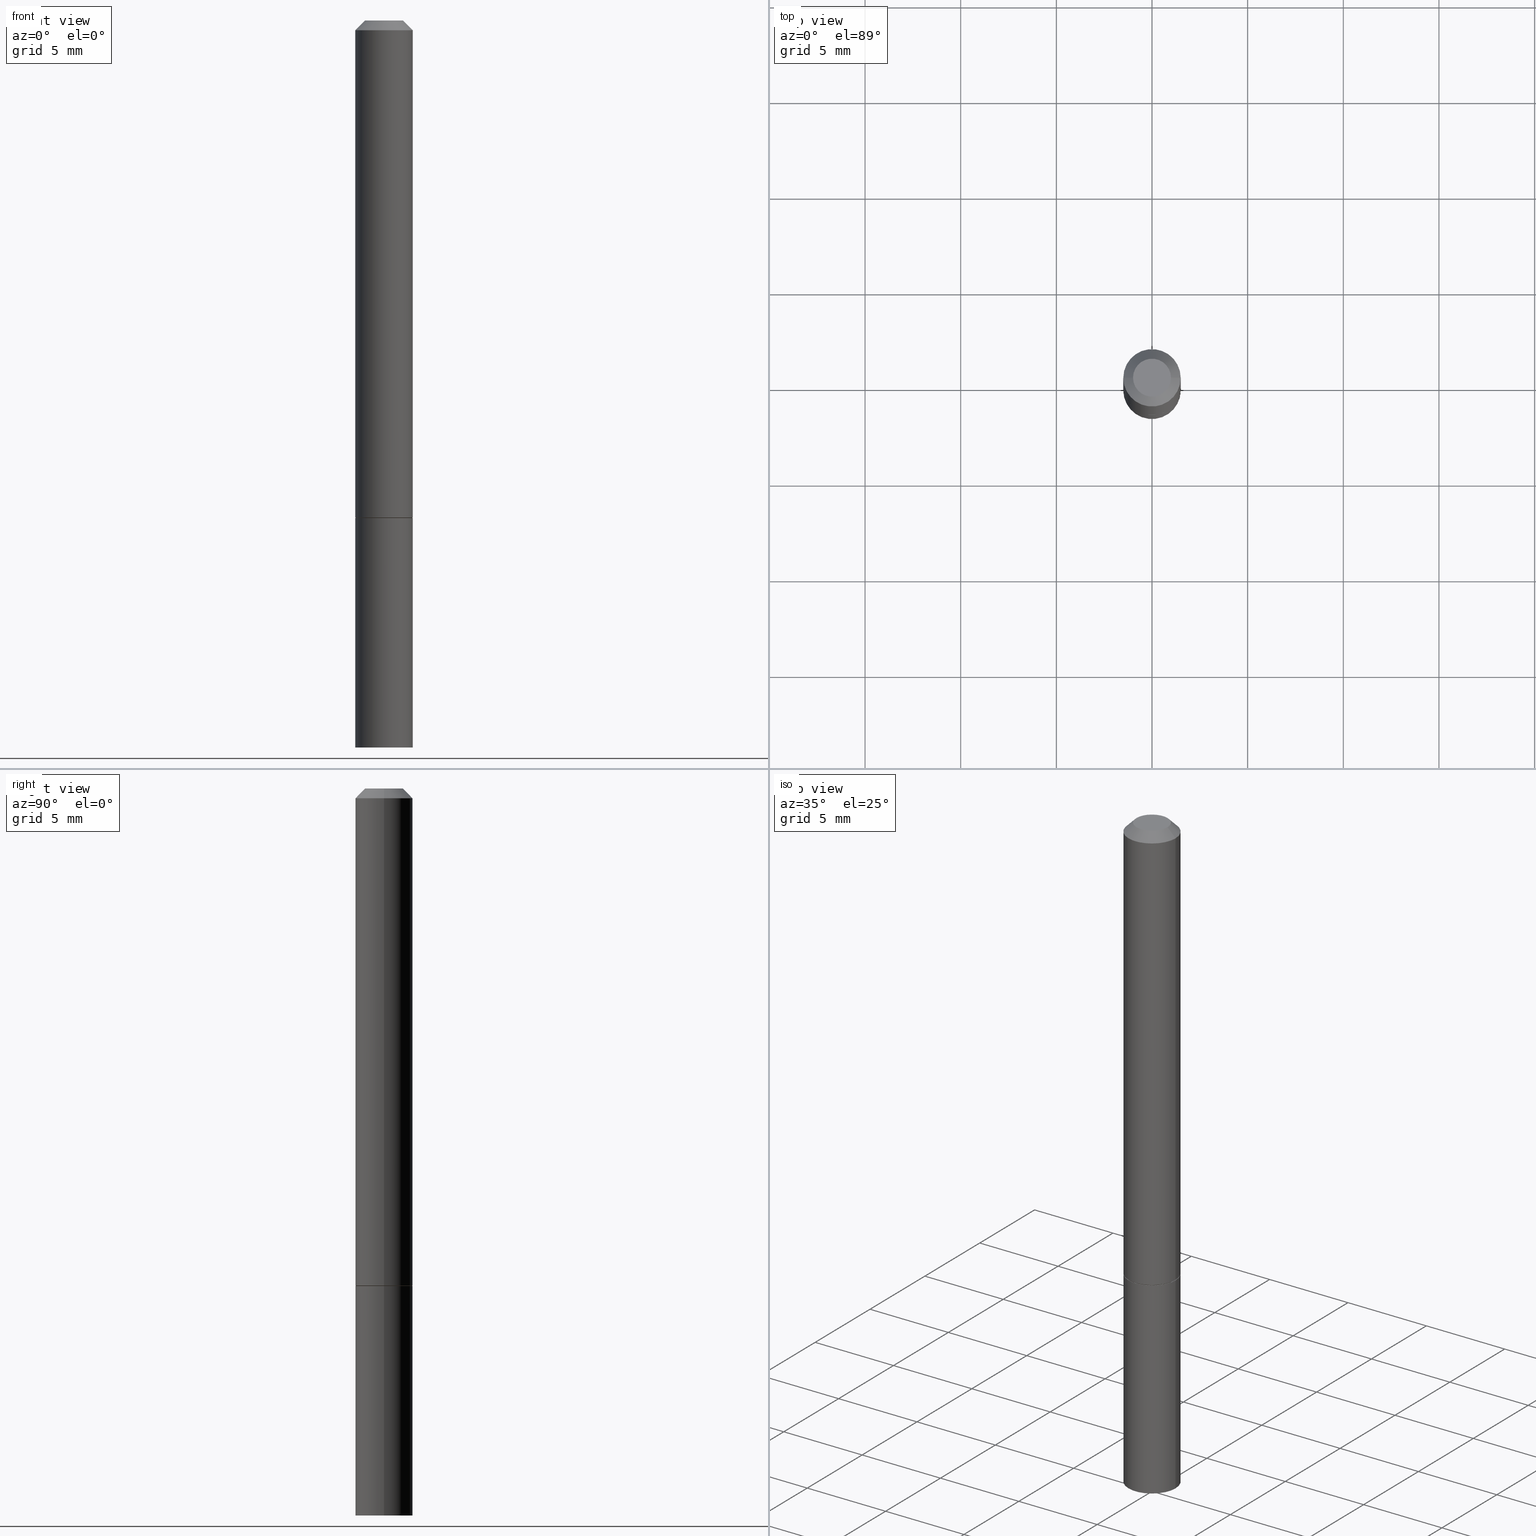
[diagram: canonical four-view strip — front | top / right | iso, engineering-drawing reading convention]
A machine part, canonical four-view strip (front | top / right | iso — engineering-drawing reading convention). The complete STEP part file that produces these views, byte-faithful:
ISO-10303-21;
HEADER;
FILE_DESCRIPTION (( 'STEP AP203' ),
    '1' );
FILE_NAME ('40121.STEP',
    '2024-02-28T01:29:10',
    ( '' ),
    ( '' ),
    'SwSTEP 2.0',
    'SolidWorks 2023',
    '' );
FILE_SCHEMA (( 'CONFIG_CONTROL_DESIGN' ));
ENDSEC;

DATA;
#1 = UNCERTAINTY_MEASURE_WITH_UNIT (LENGTH_MEASURE( 1.000000000000000082E-05 ), #310, 'distance_accuracy_value', 'NONE');
#2 = ORIENTED_EDGE ( 'NONE', *, *, #258, .T. ) ;
#3 = APPROVAL ( #11, 'UNSPECIFIED' ) ;
#4 = VERTEX_POINT ( 'NONE', #214 ) ;
#5 = DIMENSIONAL_EXPONENTS ( 1.000000000000000000, 0.000000000000000000, 0.000000000000000000, 0.000000000000000000, 0.000000000000000000, 0.000000000000000000, 0.000000000000000000 ) ;
#6 = DATE_AND_TIME ( #293, #187 ) ;
#7 = ORIENTED_EDGE ( 'NONE', *, *, #148, .T. ) ;
#8 = VECTOR ( 'NONE', #195, 39.37007874015748143 ) ;
#9 = COORDINATED_UNIVERSAL_TIME_OFFSET ( 5, 0, .BEHIND. ) ;
#10 = ORIENTED_EDGE ( 'NONE', *, *, #258, .F. ) ;
#11 = APPROVAL_STATUS ( 'not_yet_approved' ) ;
#12 = ADVANCED_FACE ( 'NONE', ( #154 ), #227, .T. ) ;
#13 = ORIENTED_EDGE ( 'NONE', *, *, #166, .T. ) ;
#14 = ORIENTED_EDGE ( 'NONE', *, *, #138, .F. ) ;
#15 = AXIS2_PLACEMENT_3D ( 'NONE', #183, #43, #69 ) ;
#16 = VECTOR ( 'NONE', #28, 39.37007874015748854 ) ;
#17 = CARTESIAN_POINT ( 'NONE',  ( 0.05904999999999999832, -4.123439461173740327E-16, 2.879382386107500220E-30 ) ) ;
#18 = DIRECTION ( 'NONE',  ( -1.000000000000000000, 6.982962677686266711E-15, 0.000000000000000000 ) ) ;
#19 = DIRECTION ( 'NONE',  ( -2.445468806185136597E-29, 3.491481338843145583E-15, 1.000000000000000000 ) ) ;
#20 = CLOSED_SHELL ( 'NONE', ( #280, #230, #330, #270 ) ) ;
#21 = DIRECTION ( 'NONE',  ( -1.000000000000000000, 6.982962677686265922E-15, -4.876176775795935793E-29 ) ) ;
#22 = CARTESIAN_POINT ( 'NONE',  ( 4.123439461174105668E-16, 0.05904999999999477334, -1.496100000000000207 ) ) ;
#23 = APPROVAL ( #207, 'UNSPECIFIED' ) ;
#24 = FACE_OUTER_BOUND ( 'NONE', #237, .T. ) ;
#25 = CIRCLE ( 'NONE', #288, 0.05904999999999999832 ) ;
#26 = DIRECTION ( 'NONE',  ( 2.445468806185136597E-29, -3.491481338843145583E-15, -1.000000000000000000 ) ) ;
#27 = ADVANCED_FACE ( 'NONE', ( #208 ), #130, .F. ) ;
#28 = DIRECTION ( 'NONE',  ( -0.7071067811865232589, 7.493145998870265808E-15, 0.7071067811865715536 ) ) ;
#29 = APPLICATION_CONTEXT ( 'configuration controlled 3d designs of mechanical parts and assemblies' ) ;
#30 = ADVANCED_FACE ( 'NONE', ( #125 ), #216, .F. ) ;
#31 = CONICAL_SURFACE ( 'NONE', #161, 0.05904999999999987342, 0.7853981633974471688 ) ;
#32 = FACE_OUTER_BOUND ( 'NONE', #141, .T. ) ;
#33 = DESIGN_CONTEXT ( 'detailed design', #29, 'design' ) ;
#34 = PERSON_AND_ORGANIZATION ( #80, #277 ) ;
#35 = EDGE_LOOP ( 'NONE', ( #251, #204 ) ) ;
#36 = APPROVAL_DATE_TIME ( #286, #3 ) ;
#37 = EDGE_LOOP ( 'NONE', ( #7, #41, #131, #311 ) ) ;
#38 = SECURITY_CLASSIFICATION ( '', '', #213 ) ;
#39 = ADVANCED_FACE ( 'NONE', ( #238 ), #331, .T. ) ;
#40 = CALENDAR_DATE ( 2024, 27, 2 ) ;
#41 = ORIENTED_EDGE ( 'NONE', *, *, #337, .T. ) ;
#42 = COORDINATED_UNIVERSAL_TIME_OFFSET ( 5, 0, .BEHIND. ) ;
#43 = DIRECTION ( 'NONE',  ( -2.445468806185136597E-29, 3.491481338843145583E-15, 1.000000000000000000 ) ) ;
#44 = DATE_TIME_ROLE ( 'creation_date' ) ;
#45 = ORIENTED_EDGE ( 'NONE', *, *, #327, .T. ) ;
#46 = APPROVAL ( #68, 'UNSPECIFIED' ) ;
#47 = AXIS2_PLACEMENT_3D ( 'NONE', #351, #260, #322 ) ;
#48 = CARTESIAN_POINT ( 'NONE',  ( -0.05904999999999987342, 3.425143193405101922E-16, -0.02000000000000001429 ) ) ;
#49 = CARTESIAN_POINT ( 'NONE',  ( -0.05904999999999987342, 3.425143193405101922E-16, -0.02000000000000001429 ) ) ;
#50 = DIRECTION ( 'NONE',  ( 1.000000000000000000, -6.982962677686267499E-15, 4.876176775795935793E-29 ) ) ;
#51 = AXIS2_PLACEMENT_3D ( 'NONE', #357, #358, #50 ) ;
#52 = CIRCLE ( 'NONE', #349, 0.05904999999999999832 ) ;
#53 = EDGE_CURVE ( 'NONE', #4, #87, #266, .T. ) ;
#54 = DIRECTION ( 'NONE',  ( -0.7071067811865466846, 2.468850131082247989E-15, -0.7071067811865483499 ) ) ;
#55 = FACE_OUTER_BOUND ( 'NONE', #347, .T. ) ;
#56 = ADVANCED_BREP_SHAPE_REPRESENTATION ( '40121', ( #263, #268, #107 ), #244 ) ;
#57 = CARTESIAN_POINT ( 'NONE',  ( 4.890937612370275786E-31, -6.982962677686296539E-17, -0.02000000000000001429 ) ) ;
#58 = EDGE_LOOP ( 'NONE', ( #114, #344 ) ) ;
#59 = EDGE_CURVE ( 'NONE', #179, #261, #102, .T. ) ;
#60 = CARTESIAN_POINT ( 'NONE',  ( 4.123439461173990297E-16, 0.05904999999999642479, -1.023700000000000276 ) ) ;
#61 = CC_DESIGN_DATE_AND_TIME_ASSIGNMENT ( #129, #215, ( #38 ) ) ;
#62 = DIRECTION ( 'NONE',  ( -2.445468806185136597E-29, 3.491481338843145583E-15, 1.000000000000000000 ) ) ;
#63 = ORIENTED_EDGE ( 'NONE', *, *, #197, .F. ) ;
#64 = DIRECTION ( 'NONE',  ( -2.445468806185136877E-29, 3.491481338843145188E-15, 1.000000000000000000 ) ) ;
#65 = AXIS2_PLACEMENT_3D ( 'NONE', #210, #73, #284 ) ;
#66 = CC_DESIGN_APPROVAL ( #3, ( #202 ) ) ;
#67 = ORIENTED_EDGE ( 'NONE', *, *, #181, .F. ) ;
#68 = APPROVAL_STATUS ( 'not_yet_approved' ) ;
#69 = DIRECTION ( 'NONE',  ( 1.000000000000000000, -6.982962677686263555E-15, 0.000000000000000000 ) ) ;
#70 = PERSON_AND_ORGANIZATION_ROLE ( 'classification_officer' ) ;
#71 = ORIENTED_EDGE ( 'NONE', *, *, #211, .T. ) ;
#72 = ADVANCED_FACE ( 'NONE', ( #180 ), #291, .T. ) ;
#73 = DIRECTION ( 'NONE',  ( -2.445468806185136597E-29, 3.491481338843145583E-15, 1.000000000000000000 ) ) ;
#74 = CIRCLE ( 'NONE', #171, 0.05904999999999987342 ) ;
#75 = APPLICATION_PROTOCOL_DEFINITION ( 'international standard', 'config_control_design', 1994, #29 ) ;
#76 = ORIENTED_EDGE ( 'NONE', *, *, #118, .F. ) ;
#77 = CARTESIAN_POINT ( 'NONE',  ( 2.503426416891724625E-29, -3.574229446573728402E-15, -1.023700000000000054 ) ) ;
#78 = CARTESIAN_POINT ( 'NONE',  ( 0.05804999999999999744, -3.979590430013416519E-15, -1.023700000000000054 ) ) ;
#79 = PLANE ( 'NONE',  #89 ) ;
#80 = PERSON ( 'UNSPECIFIED', 'UNSPECIFIED', 'UNSPECIFIED', ('UNSPECIFIED'), ('UNSPECIFIED'), ('UNSPECIFIED') ) ;
#81 = CARTESIAN_POINT ( 'NONE',  ( -0.05904999999999999832, -1.400708310539532684E-15, -1.022699999999999942 ) ) ;
#82 = DIRECTION ( 'NONE',  ( 2.438088387897960049E-29, -3.491481338843145188E-15, -1.000000000000000000 ) ) ;
#83 = CLOSED_SHELL ( 'NONE', ( #12, #359, #364, #128, #72, #39, #30, #27 ) ) ;
#84 = CARTESIAN_POINT ( 'NONE',  ( 3.658665880933582389E-29, -5.223605231043229660E-15, -1.496099999999999985 ) ) ;
#85 = CC_DESIGN_PERSON_AND_ORGANIZATION_ASSIGNMENT ( #34, #70, ( #38 ) ) ;
#86 = CARTESIAN_POINT ( 'NONE',  ( 2.500980948085539022E-29, -3.570737965234884606E-15, -1.022699999999999942 ) ) ;
#87 = VERTEX_POINT ( 'NONE', #271 ) ;
#88 = CIRCLE ( 'NONE', #366, 0.05804999999999999744 ) ;
#89 = AXIS2_PLACEMENT_3D ( 'NONE', #22, #82, #21 ) ;
#90 = FACE_OUTER_BOUND ( 'NONE', #35, .T. ) ;
#91 = VERTEX_POINT ( 'NONE', #190 ) ;
#92 = DIRECTION ( 'NONE',  ( 2.438088387897960049E-29, -3.491481338843145188E-15, -1.000000000000000000 ) ) ;
#93 = CIRCLE ( 'NONE', #212, 0.05904999999999999832 ) ;
#94 = COORDINATED_UNIVERSAL_TIME_OFFSET ( 5, 0, .BEHIND. ) ;
#95 = LOCAL_TIME ( 20, 29, 10.00000000000000000, #121 ) ;
#96 = APPROVAL_ROLE ( '' ) ;
#97 = EDGE_CURVE ( 'NONE', #123, #253, #320, .T. ) ;
#98 = ORIENTED_EDGE ( 'NONE', *, *, #59, .T. ) ;
#99 = DIRECTION ( 'NONE',  ( -1.000000000000000000, 6.982962677686265922E-15, -4.876176775795935793E-29 ) ) ;
#100 = APPROVAL_DATE_TIME ( #177, #46 ) ;
#101 = ORIENTED_EDGE ( 'NONE', *, *, #59, .F. ) ;
#102 = CIRCLE ( 'NONE', #65, 0.05904999999999987342 ) ;
#103 = AXIS2_PLACEMENT_3D ( 'NONE', #86, #142, #231 ) ;
#104 = EDGE_LOOP ( 'NONE', ( #206, #240, #120, #76 ) ) ;
#105 = DIRECTION ( 'NONE',  ( -2.438088387897960049E-29, 3.491481338843145188E-15, 1.000000000000000000 ) ) ;
#106 = DIRECTION ( 'NONE',  ( 0.7071067811865466846, -7.319954787623252890E-15, -0.7071067811865483499 ) ) ;
#107 = AXIS2_PLACEMENT_3D ( 'NONE', #112, #229, #252 ) ;
#108 = LINE ( 'NONE', #78, #145 ) ;
#109 = CARTESIAN_POINT ( 'NONE',  ( -0.05804999999999999744, -3.156460934116768304E-15, -1.023700000000000054 ) ) ;
#110 = DIRECTION ( 'NONE',  ( -2.445468806185136597E-29, 3.491481338843145583E-15, 1.000000000000000000 ) ) ;
#111 = CC_DESIGN_DATE_AND_TIME_ASSIGNMENT ( #209, #44, ( #202 ) ) ;
#112 = CARTESIAN_POINT ( 'NONE',  ( 0.000000000000000000, 0.000000000000000000, 0.000000000000000000 ) ) ;
#113 =( LENGTH_UNIT ( ) NAMED_UNIT ( * ) SI_UNIT ( $, .METRE. ) );
#114 = ORIENTED_EDGE ( 'NONE', *, *, #148, .F. ) ;
#115 = VERTEX_POINT ( 'NONE', #267 ) ;
#116 = AXIS2_PLACEMENT_3D ( 'NONE', #353, #194, #326 ) ;
#117 = APPROVAL_PERSON_ORGANIZATION ( #155, #23, #345 ) ;
#118 = EDGE_CURVE ( 'NONE', #150, #179, #245, .T. ) ;
#119 = DIRECTION ( 'NONE',  ( -2.445468806185136597E-29, 3.491481338843145583E-15, 1.000000000000000000 ) ) ;
#120 = ORIENTED_EDGE ( 'NONE', *, *, #315, .T. ) ;
#121 = COORDINATED_UNIVERSAL_TIME_OFFSET ( 5, 0, .BEHIND. ) ;
#122 = PRODUCT_DEFINITION_FORMATION_WITH_SPECIFIED_SOURCE ( 'ANY', '', #285, .NOT_KNOWN. ) ;
#123 = VERTEX_POINT ( 'NONE', #109 ) ;
#124 = APPROVAL_ROLE ( '' ) ;
#125 = FACE_OUTER_BOUND ( 'NONE', #58, .T. ) ;
#126 = CALENDAR_DATE ( 2024, 27, 2 ) ;
#127 = ORIENTED_EDGE ( 'NONE', *, *, #191, .T. ) ;
#128 = ADVANCED_FACE ( 'NONE', ( #24 ), #312, .T. ) ;
#129 = DATE_AND_TIME ( #157, #95 ) ;
#130 = PLANE ( 'NONE',  #276 ) ;
#131 = ORIENTED_EDGE ( 'NONE', *, *, #308, .F. ) ;
#132 = DIRECTION ( 'NONE',  ( 1.000000000000000000, -6.982962677686273021E-15, 0.000000000000000000 ) ) ;
#133 = DIRECTION ( 'NONE',  ( -2.445468806185136877E-29, 3.491481338843145188E-15, 1.000000000000000000 ) ) ;
#134 = CIRCLE ( 'NONE', #51, 0.03904999999999990423 ) ;
#135 = CC_DESIGN_SECURITY_CLASSIFICATION ( #38, ( #122 ) ) ;
#136 = CARTESIAN_POINT ( 'NONE',  ( 3.658665880933582389E-29, -5.223605231043229660E-15, -1.496099999999999985 ) ) ;
#137 = DIRECTION ( 'NONE',  ( 1.000000000000000000, -6.982962677686265133E-15, 0.000000000000000000 ) ) ;
#138 = EDGE_CURVE ( 'NONE', #185, #261, #298, .T. ) ;
#139 = CARTESIAN_POINT ( 'NONE',  ( 2.503426416891724625E-29, -3.574229446573728402E-15, -1.023700000000000054 ) ) ;
#140 = CARTESIAN_POINT ( 'NONE',  ( 0.000000000000000000, 0.000000000000000000, 0.000000000000000000 ) ) ;
#141 = EDGE_LOOP ( 'NONE', ( #170, #241, #234, #292 ) ) ;
#142 = DIRECTION ( 'NONE',  ( -2.445468806185136597E-29, 3.491481338843145583E-15, 1.000000000000000000 ) ) ;
#143 = VERTEX_POINT ( 'NONE', #81 ) ;
#144 = CARTESIAN_POINT ( 'NONE',  ( 0.000000000000000000, 0.000000000000000000, 0.000000000000000000 ) ) ;
#145 = VECTOR ( 'NONE', #186, 39.37007874015748854 ) ;
#146 = EDGE_LOOP ( 'NONE', ( #287, #350, #262, #67 ) ) ;
#147 = APPLICATION_PROTOCOL_DEFINITION ( 'international standard', 'config_control_design', 1994, #336 ) ;
#148 = EDGE_CURVE ( 'NONE', #253, #123, #88, .T. ) ;
#149 = SHAPE_DEFINITION_REPRESENTATION ( #235, #56 ) ;
#150 = VERTEX_POINT ( 'NONE', #218 ) ;
#151 = VECTOR ( 'NONE', #54, 39.37007874015748143 ) ;
#152 = PERSON_AND_ORGANIZATION ( #80, #277 ) ;
#153 = LOCAL_TIME ( 20, 29, 10.00000000000000000, #94 ) ;
#154 = FACE_OUTER_BOUND ( 'NONE', #37, .T. ) ;
#155 = PERSON_AND_ORGANIZATION ( #80, #277 ) ;
#156 = CARTESIAN_POINT ( 'NONE',  ( 2.726846925636480279E-16, 0.03904999999999990423, -1.363423462818245070E-16 ) ) ;
#157 = CALENDAR_DATE ( 2024, 27, 2 ) ;
#158 = ORIENTED_EDGE ( 'NONE', *, *, #337, .F. ) ;
#159 = PERSON_AND_ORGANIZATION_ROLE ( 'creator' ) ;
#160 = ORIENTED_EDGE ( 'NONE', *, *, #188, .F. ) ;
#161 = AXIS2_PLACEMENT_3D ( 'NONE', #283, #26, #250 ) ;
#162 = DIRECTION ( 'NONE',  ( -2.445468806185136597E-29, 3.491481338843145583E-15, 1.000000000000000000 ) ) ;
#163 = CARTESIAN_POINT ( 'NONE',  ( 2.503426416891724625E-29, -3.574229446573728402E-15, -1.023700000000000054 ) ) ;
#164 = FACE_OUTER_BOUND ( 'NONE', #146, .T. ) ;
#165 = AXIS2_PLACEMENT_3D ( 'NONE', #242, #269, #18 ) ;
#166 = EDGE_CURVE ( 'NONE', #4, #115, #93, .T. ) ;
#167 = DIRECTION ( 'NONE',  ( 1.000000000000000000, -6.982962677686263555E-15, 0.000000000000000000 ) ) ;
#168 = CARTESIAN_POINT ( 'NONE',  ( 0.05804999999999999744, -3.979590430013416519E-15, -1.023700000000000054 ) ) ;
#169 = DIRECTION ( 'NONE',  ( -2.445468806185136597E-29, 3.491481338843145583E-15, 1.000000000000000000 ) ) ;
#170 = ORIENTED_EDGE ( 'NONE', *, *, #308, .T. ) ;
#171 = AXIS2_PLACEMENT_3D ( 'NONE', #57, #119, #201 ) ;
#172 = DIRECTION ( 'NONE',  ( 1.000000000000000000, -6.982962677686266711E-15, 4.876176775795936353E-29 ) ) ;
#173 = CARTESIAN_POINT ( 'NONE',  ( 0.05904999999999992893, -4.123439461173735397E-16, 2.879382386107496717E-30 ) ) ;
#174 = EDGE_LOOP ( 'NONE', ( #363, #127 ) ) ;
#175 = PLANE ( 'NONE',  #193 ) ;
#176 = DIRECTION ( 'NONE',  ( -1.000000000000000000, 6.982962677686265922E-15, -4.876176775795935793E-29 ) ) ;
#177 = DATE_AND_TIME ( #40, #265 ) ;
#178 = DIRECTION ( 'NONE',  ( -2.445468806185136877E-29, 3.491481338843145188E-15, 1.000000000000000000 ) ) ;
#179 = VERTEX_POINT ( 'NONE', #48 ) ;
#180 = FACE_OUTER_BOUND ( 'NONE', #256, .T. ) ;
#181 = EDGE_CURVE ( 'NONE', #91, #87, #295, .T. ) ;
#182 = PERSON_AND_ORGANIZATION ( #80, #277 ) ;
#183 = CARTESIAN_POINT ( 'NONE',  ( 2.503426416891724625E-29, -3.574229446573728402E-15, -1.023700000000000054 ) ) ;
#184 = PERSON_AND_ORGANIZATION ( #80, #277 ) ;
#185 = VERTEX_POINT ( 'NONE', #243 ) ;
#186 = DIRECTION ( 'NONE',  ( 0.7071067811865232589, -2.468850131082003836E-15, 0.7071067811865715536 ) ) ;
#187 = LOCAL_TIME ( 20, 29, 10.00000000000000000, #42 ) ;
#188 = EDGE_CURVE ( 'NONE', #87, #91, #25, .T. ) ;
#189 = CARTESIAN_POINT ( 'NONE',  ( 2.500980948085539022E-29, -3.570737965234884606E-15, -1.022699999999999942 ) ) ;
#190 = CARTESIAN_POINT ( 'NONE',  ( -0.05904999999999999832, -3.979341853342139538E-15, -1.023699999999999832 ) ) ;
#191 = EDGE_CURVE ( 'NONE', #185, #150, #134, .T. ) ;
#192 = CARTESIAN_POINT ( 'NONE',  ( 0.000000000000000000, 0.000000000000000000, 0.000000000000000000 ) ) ;
#193 = AXIS2_PLACEMENT_3D ( 'NONE', #60, #92, #176 ) ;
#194 = DIRECTION ( 'NONE',  ( -2.445468806185136597E-29, 3.491481338843145583E-15, 1.000000000000000000 ) ) ;
#195 = DIRECTION ( 'NONE',  ( -2.445468806185136877E-29, 3.491481338843145188E-15, 1.000000000000000000 ) ) ;
#196 =( NAMED_UNIT ( * ) PLANE_ANGLE_UNIT ( ) SI_UNIT ( $, .RADIAN. ) );
#197 = EDGE_CURVE ( 'NONE', #143, #179, #221, .T. ) ;
#198 = AXIS2_PLACEMENT_3D ( 'NONE', #361, #273, #329 ) ;
#199 = CIRCLE ( 'NONE', #333, 0.03904999999999990423 ) ;
#200 = ORIENTED_EDGE ( 'NONE', *, *, #97, .T. ) ;
#201 = DIRECTION ( 'NONE',  ( 1.000000000000000000, -6.982962677686266711E-15, 0.000000000000000000 ) ) ;
#202 = PRODUCT_DEFINITION ( 'UNKNOWN', '', #122, #33 ) ;
#203 = LENGTH_MEASURE_WITH_UNIT ( LENGTH_MEASURE( 0.02539999999999999897 ), #113 );
#204 = ORIENTED_EDGE ( 'NONE', *, *, #181, .T. ) ;
#205 = PERSON_AND_ORGANIZATION_ROLE ( 'creator' ) ;
#206 = ORIENTED_EDGE ( 'NONE', *, *, #191, .F. ) ;
#207 = APPROVAL_STATUS ( 'not_yet_approved' ) ;
#208 = FACE_OUTER_BOUND ( 'NONE', #174, .T. ) ;
#209 = DATE_AND_TIME ( #126, #289 ) ;
#210 = CARTESIAN_POINT ( 'NONE',  ( 4.890937612370275786E-31, -6.982962677686296539E-17, -0.02000000000000001429 ) ) ;
#211 = EDGE_CURVE ( 'NONE', #253, #319, #108, .T. ) ;
#212 = AXIS2_PLACEMENT_3D ( 'NONE', #84, #110, #132 ) ;
#213 = SECURITY_CLASSIFICATION_LEVEL ( 'unclassified' ) ;
#214 = CARTESIAN_POINT ( 'NONE',  ( 0.05904999999999999832, -5.635949177160603791E-15, -1.496099999999999985 ) ) ;
#215 = DATE_TIME_ROLE ( 'classification_date' ) ;
#216 = PLANE ( 'NONE',  #233 ) ;
#217 = CC_DESIGN_PERSON_AND_ORGANIZATION_ASSIGNMENT ( #182, #236, ( #122 ) ) ;
#218 = CARTESIAN_POINT ( 'NONE',  ( -0.03904999999999990423, 3.075995059520791347E-16, -2.028933503684348466E-30 ) ) ;
#219 = DIRECTION ( 'NONE',  ( 1.000000000000000000, -6.982962677686273021E-15, 0.000000000000000000 ) ) ;
#220 = CIRCLE ( 'NONE', #228, 0.05904999999999999832 ) ;
#221 = LINE ( 'NONE', #324, #313 ) ;
#222 = CYLINDRICAL_SURFACE ( 'NONE', #296, 0.05904999999999999832 ) ;
#223 = EDGE_CURVE ( 'NONE', #115, #4, #220, .T. ) ;
#224 = CARTESIAN_POINT ( 'NONE',  ( 0.05904999999999987342, -4.749420335452709831E-16, -0.02000000000000001429 ) ) ;
#225 = VECTOR ( 'NONE', #64, 39.37007874015748143 ) ;
#226 = ORIENTED_EDGE ( 'NONE', *, *, #352, .F. ) ;
#227 = CONICAL_SURFACE ( 'NONE', #47, 0.05804999999999999744, 0.7853981633974141952 ) ;
#228 = AXIS2_PLACEMENT_3D ( 'NONE', #136, #19, #219 ) ;
#229 = DIRECTION ( 'NONE',  ( 0.000000000000000000, 0.000000000000000000, 1.000000000000000000 ) ) ;
#230 = ADVANCED_FACE ( 'NONE', ( #55 ), #79, .T. ) ;
#231 = DIRECTION ( 'NONE',  ( 1.000000000000000000, -6.982962677686265133E-15, 0.000000000000000000 ) ) ;
#232 = ORIENTED_EDGE ( 'NONE', *, *, #348, .T. ) ;
#233 = AXIS2_PLACEMENT_3D ( 'NONE', #77, #105, #346 ) ;
#234 = ORIENTED_EDGE ( 'NONE', *, *, #315, .F. ) ;
#235 = PRODUCT_DEFINITION_SHAPE ( 'NONE', 'NONE',  #202 ) ;
#236 = PERSON_AND_ORGANIZATION_ROLE ( 'design_supplier' ) ;
#237 = EDGE_LOOP ( 'NONE', ( #14, #226, #307, #98 ) ) ;
#238 = FACE_OUTER_BOUND ( 'NONE', #317, .T. ) ;
#239 = APPROVAL_PERSON_ORGANIZATION ( #259, #46, #96 ) ;
#240 = ORIENTED_EDGE ( 'NONE', *, *, #138, .T. ) ;
#241 = ORIENTED_EDGE ( 'NONE', *, *, #197, .T. ) ;
#242 = CARTESIAN_POINT ( 'NONE',  ( 4.890937612370275786E-31, -6.982962677686296539E-17, -0.02000000000000001429 ) ) ;
#243 = CARTESIAN_POINT ( 'NONE',  ( 0.03904999999999990423, -3.714222401791242985E-16, 2.251769389232022769E-30 ) ) ;
#244 =( GEOMETRIC_REPRESENTATION_CONTEXT ( 3 ) GLOBAL_UNCERTAINTY_ASSIGNED_CONTEXT ( ( #1 ) ) GLOBAL_UNIT_ASSIGNED_CONTEXT ( ( #310, #196, #278 ) ) REPRESENTATION_CONTEXT ( 'NONE', 'WORKASPACE' ) );
#245 = LINE ( 'NONE', #49, #151 ) ;
#246 = DIRECTION ( 'NONE',  ( 1.000000000000000000, -6.982962677686266711E-15, 4.876176775795936353E-29 ) ) ;
#247 = DIRECTION ( 'NONE',  ( -2.445468806185136597E-29, 3.491481338843145583E-15, 1.000000000000000000 ) ) ;
#248 = CARTESIAN_POINT ( 'NONE',  ( 0.05904999999999999832, -3.983081911352258737E-15, -1.022699999999999942 ) ) ;
#249 = ORIENTED_EDGE ( 'NONE', *, *, #166, .F. ) ;
#250 = DIRECTION ( 'NONE',  ( -1.000000000000000000, 6.982962677686266711E-15, 0.000000000000000000 ) ) ;
#251 = ORIENTED_EDGE ( 'NONE', *, *, #188, .T. ) ;
#252 = DIRECTION ( 'NONE',  ( 1.000000000000000000, 0.000000000000000000, 0.000000000000000000 ) ) ;
#253 = VERTEX_POINT ( 'NONE', #168 ) ;
#254 = DIRECTION ( 'NONE',  ( 1.000000000000000000, -6.982962677686266711E-15, 4.876176775795935793E-29 ) ) ;
#255 = COORDINATED_UNIVERSAL_TIME_OFFSET ( 5, 0, .BEHIND. ) ;
#256 = EDGE_LOOP ( 'NONE', ( #63, #2, #45, #101 ) ) ;
#257 = AXIS2_PLACEMENT_3D ( 'NONE', #140, #281, #254 ) ;
#258 = EDGE_CURVE ( 'NONE', #143, #319, #52, .T. ) ;
#259 = PERSON_AND_ORGANIZATION ( #80, #277 ) ;
#260 = DIRECTION ( 'NONE',  ( -2.445468806185136597E-29, 3.491481338843145583E-15, 1.000000000000000000 ) ) ;
#261 = VERTEX_POINT ( 'NONE', #299 ) ;
#262 = ORIENTED_EDGE ( 'NONE', *, *, #53, .T. ) ;
#263 = MANIFOLD_SOLID_BREP ( 'Body-Move/Copy2[1]', #20 ) ;
#264 = CC_DESIGN_PERSON_AND_ORGANIZATION_ASSIGNMENT ( #184, #290, ( #285 ) ) ;
#265 = LOCAL_TIME ( 20, 29, 10.00000000000000000, #9 ) ;
#266 = LINE ( 'NONE', #17, #325 ) ;
#267 = CARTESIAN_POINT ( 'NONE',  ( -0.05904999999999999832, -3.979341853342139538E-15, -1.496099999999999985 ) ) ;
#268 = MANIFOLD_SOLID_BREP ( 'Body-Move/Copy2[2]', #83 ) ;
#269 = DIRECTION ( 'NONE',  ( 2.445468806185136597E-29, -3.491481338843145583E-15, -1.000000000000000000 ) ) ;
#270 = ADVANCED_FACE ( 'NONE', ( #164 ), #222, .T. ) ;
#271 = CARTESIAN_POINT ( 'NONE',  ( 0.05904999999999999832, -3.986573392691101744E-15, -1.023699999999999832 ) ) ;
#272 = APPROVAL_PERSON_ORGANIZATION ( #314, #3, #124 ) ;
#273 = DIRECTION ( 'NONE',  ( -2.445468806185136597E-29, 3.491481338843145583E-15, 1.000000000000000000 ) ) ;
#274 = DIRECTION ( 'NONE',  ( 1.000000000000000000, -6.982962677686263555E-15, 0.000000000000000000 ) ) ;
#275 = CARTESIAN_POINT ( 'NONE',  ( 0.000000000000000000, 0.000000000000000000, 0.000000000000000000 ) ) ;
#276 = AXIS2_PLACEMENT_3D ( 'NONE', #156, #294, #99 ) ;
#277 = ORGANIZATION ( 'UNSPECIFIED', 'UNSPECIFIED', '' ) ;
#278 =( NAMED_UNIT ( * ) SI_UNIT ( $, .STERADIAN. ) SOLID_ANGLE_UNIT ( ) );
#279 = LINE ( 'NONE', #335, #225 ) ;
#280 = ADVANCED_FACE ( 'NONE', ( #360 ), #334, .T. ) ;
#281 = DIRECTION ( 'NONE',  ( -2.445468806185136597E-29, 3.491481338843145583E-15, 1.000000000000000000 ) ) ;
#282 = CC_DESIGN_APPROVAL ( #23, ( #38 ) ) ;
#283 = CARTESIAN_POINT ( 'NONE',  ( 4.890937612370275786E-31, -6.982962677686296539E-17, -0.02000000000000001429 ) ) ;
#284 = DIRECTION ( 'NONE',  ( 1.000000000000000000, -6.982962677686266711E-15, 0.000000000000000000 ) ) ;
#285 = PRODUCT ( '40121', '40121', '', ( #338 ) ) ;
#286 = DATE_AND_TIME ( #341, #153 ) ;
#287 = ORIENTED_EDGE ( 'NONE', *, *, #348, .F. ) ;
#288 = AXIS2_PLACEMENT_3D ( 'NONE', #297, #162, #332 ) ;
#289 = LOCAL_TIME ( 20, 29, 10.00000000000000000, #255 ) ;
#290 = PERSON_AND_ORGANIZATION_ROLE ( 'design_owner' ) ;
#291 = CYLINDRICAL_SURFACE ( 'NONE', #116, 0.05904999999999992893 ) ;
#292 = ORIENTED_EDGE ( 'NONE', *, *, #327, .F. ) ;
#293 = CALENDAR_DATE ( 2024, 27, 2 ) ;
#294 = DIRECTION ( 'NONE',  ( 2.438088387897960049E-29, -3.491481338843145188E-15, -1.000000000000000000 ) ) ;
#295 = CIRCLE ( 'NONE', #198, 0.05904999999999999832 ) ;
#296 = AXIS2_PLACEMENT_3D ( 'NONE', #192, #301, #246 ) ;
#297 = CARTESIAN_POINT ( 'NONE',  ( 2.503426416891724344E-29, -3.574229446573728402E-15, -1.023699999999999832 ) ) ;
#298 = LINE ( 'NONE', #224, #354 ) ;
#299 = CARTESIAN_POINT ( 'NONE',  ( 0.05904999999999987342, -4.749420335452709831E-16, -0.02000000000000001429 ) ) ;
#300 = AXIS2_PLACEMENT_3D ( 'NONE', #163, #303, #274 ) ;
#301 = DIRECTION ( 'NONE',  ( -2.445468806185136597E-29, 3.491481338843145583E-15, 1.000000000000000000 ) ) ;
#302 = CC_DESIGN_PERSON_AND_ORGANIZATION_ASSIGNMENT ( #152, #205, ( #202 ) ) ;
#303 = DIRECTION ( 'NONE',  ( -2.445468806185136597E-29, 3.491481338843145583E-15, 1.000000000000000000 ) ) ;
#304 = CARTESIAN_POINT ( 'NONE',  ( -0.05804999999999999744, -3.161759388464990311E-15, -1.023700000000000054 ) ) ;
#305 = FACE_OUTER_BOUND ( 'NONE', #104, .T. ) ;
#306 = CC_DESIGN_APPROVAL ( #46, ( #122 ) ) ;
#307 = ORIENTED_EDGE ( 'NONE', *, *, #118, .T. ) ;
#308 = EDGE_CURVE ( 'NONE', #319, #143, #321, .T. ) ;
#309 = LINE ( 'NONE', #304, #16 ) ;
#310 =( CONVERSION_BASED_UNIT ( 'INCH', #203 ) LENGTH_UNIT ( ) NAMED_UNIT ( #5 ) );
#311 = ORIENTED_EDGE ( 'NONE', *, *, #211, .F. ) ;
#312 = CONICAL_SURFACE ( 'NONE', #165, 0.05904999999999987342, 0.7853981633974471688 ) ;
#313 = VECTOR ( 'NONE', #133, 39.37007874015748143 ) ;
#314 = PERSON_AND_ORGANIZATION ( #80, #277 ) ;
#315 = EDGE_CURVE ( 'NONE', #261, #179, #74, .T. ) ;
#316 = EDGE_LOOP ( 'NONE', ( #13, #232, #160, #323 ) ) ;
#317 = EDGE_LOOP ( 'NONE', ( #158, #200, #71, #10 ) ) ;
#318 = PERSON_AND_ORGANIZATION ( #80, #277 ) ;
#319 = VERTEX_POINT ( 'NONE', #248 ) ;
#320 = CIRCLE ( 'NONE', #300, 0.05804999999999999744 ) ;
#321 = CIRCLE ( 'NONE', #103, 0.05904999999999999832 ) ;
#322 = DIRECTION ( 'NONE',  ( 1.000000000000000000, -6.982962677686263555E-15, 0.000000000000000000 ) ) ;
#323 = ORIENTED_EDGE ( 'NONE', *, *, #53, .F. ) ;
#324 = CARTESIAN_POINT ( 'NONE',  ( -0.05904999999999992893, 4.195754854663386548E-16, -2.904631170795518389E-30 ) ) ;
#325 = VECTOR ( 'NONE', #178, 39.37007874015748143 ) ;
#326 = DIRECTION ( 'NONE',  ( 1.000000000000000000, -6.982962677686266711E-15, 4.876176775795935793E-29 ) ) ;
#327 = EDGE_CURVE ( 'NONE', #319, #261, #365, .T. ) ;
#328 = DIRECTION ( 'NONE',  ( -2.445468806185136597E-29, 3.491481338843145583E-15, 1.000000000000000000 ) ) ;
#329 = DIRECTION ( 'NONE',  ( 1.000000000000000000, -6.982962677686265133E-15, 0.000000000000000000 ) ) ;
#330 = ADVANCED_FACE ( 'NONE', ( #90 ), #175, .F. ) ;
#331 = CONICAL_SURFACE ( 'NONE', #15, 0.05804999999999999744, 0.7853981633974141952 ) ;
#332 = DIRECTION ( 'NONE',  ( 1.000000000000000000, -6.982962677686265133E-15, 0.000000000000000000 ) ) ;
#333 = AXIS2_PLACEMENT_3D ( 'NONE', #275, #169, #339 ) ;
#334 = CYLINDRICAL_SURFACE ( 'NONE', #355, 0.05904999999999999832 ) ;
#335 = CARTESIAN_POINT ( 'NONE',  ( -0.05904999999999999832, 4.195754854663391478E-16, -2.904631170795521892E-30 ) ) ;
#336 = APPLICATION_CONTEXT ( 'configuration controlled 3d designs of mechanical parts and assemblies' ) ;
#337 = EDGE_CURVE ( 'NONE', #123, #143, #309, .T. ) ;
#338 = MECHANICAL_CONTEXT ( 'NONE', #336, 'mechanical' ) ;
#339 = DIRECTION ( 'NONE',  ( 1.000000000000000000, -6.982962677686267499E-15, 4.876176775795935793E-29 ) ) ;
#340 = CC_DESIGN_PERSON_AND_ORGANIZATION_ASSIGNMENT ( #318, #159, ( #122 ) ) ;
#341 = CALENDAR_DATE ( 2024, 27, 2 ) ;
#342 = ORIENTED_EDGE ( 'NONE', *, *, #223, .F. ) ;
#343 = APPROVAL_DATE_TIME ( #6, #23 ) ;
#344 = ORIENTED_EDGE ( 'NONE', *, *, #97, .F. ) ;
#345 = APPROVAL_ROLE ( '' ) ;
#346 = DIRECTION ( 'NONE',  ( 1.000000000000000000, -6.982962677686265922E-15, 4.876176775795935793E-29 ) ) ;
#347 = EDGE_LOOP ( 'NONE', ( #249, #342 ) ) ;
#348 = EDGE_CURVE ( 'NONE', #115, #91, #279, .T. ) ;
#349 = AXIS2_PLACEMENT_3D ( 'NONE', #189, #328, #137 ) ;
#350 = ORIENTED_EDGE ( 'NONE', *, *, #223, .T. ) ;
#351 = CARTESIAN_POINT ( 'NONE',  ( 2.503426416891724625E-29, -3.574229446573728402E-15, -1.023700000000000054 ) ) ;
#352 = EDGE_CURVE ( 'NONE', #150, #185, #199, .T. ) ;
#353 = CARTESIAN_POINT ( 'NONE',  ( 0.000000000000000000, 0.000000000000000000, 0.000000000000000000 ) ) ;
#354 = VECTOR ( 'NONE', #106, 39.37007874015748143 ) ;
#355 = AXIS2_PLACEMENT_3D ( 'NONE', #144, #62, #172 ) ;
#356 = PRODUCT_RELATED_PRODUCT_CATEGORY ( 'detail', '', ( #285 ) ) ;
#357 = CARTESIAN_POINT ( 'NONE',  ( 0.000000000000000000, 0.000000000000000000, 0.000000000000000000 ) ) ;
#358 = DIRECTION ( 'NONE',  ( -2.445468806185136597E-29, 3.491481338843145583E-15, 1.000000000000000000 ) ) ;
#359 = ADVANCED_FACE ( 'NONE', ( #32 ), #362, .T. ) ;
#360 = FACE_OUTER_BOUND ( 'NONE', #316, .T. ) ;
#361 = CARTESIAN_POINT ( 'NONE',  ( 2.503426416891724344E-29, -3.574229446573728402E-15, -1.023699999999999832 ) ) ;
#362 = CYLINDRICAL_SURFACE ( 'NONE', #257, 0.05904999999999992893 ) ;
#363 = ORIENTED_EDGE ( 'NONE', *, *, #352, .T. ) ;
#364 = ADVANCED_FACE ( 'NONE', ( #305 ), #31, .T. ) ;
#365 = LINE ( 'NONE', #173, #8 ) ;
#366 = AXIS2_PLACEMENT_3D ( 'NONE', #139, #247, #167 ) ;
ENDSEC;
END-ISO-10303-21;
